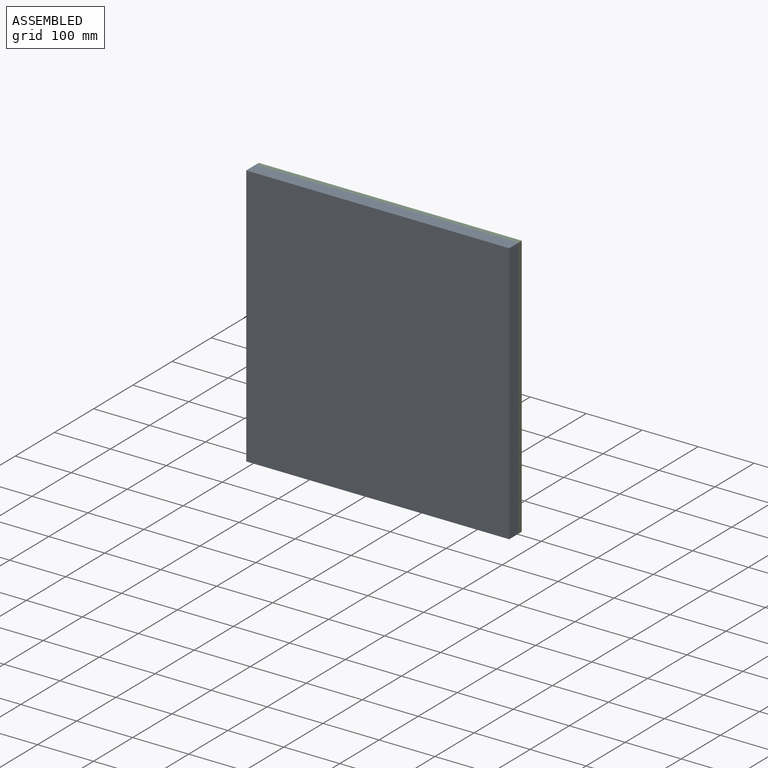
[diagram: assembled view]
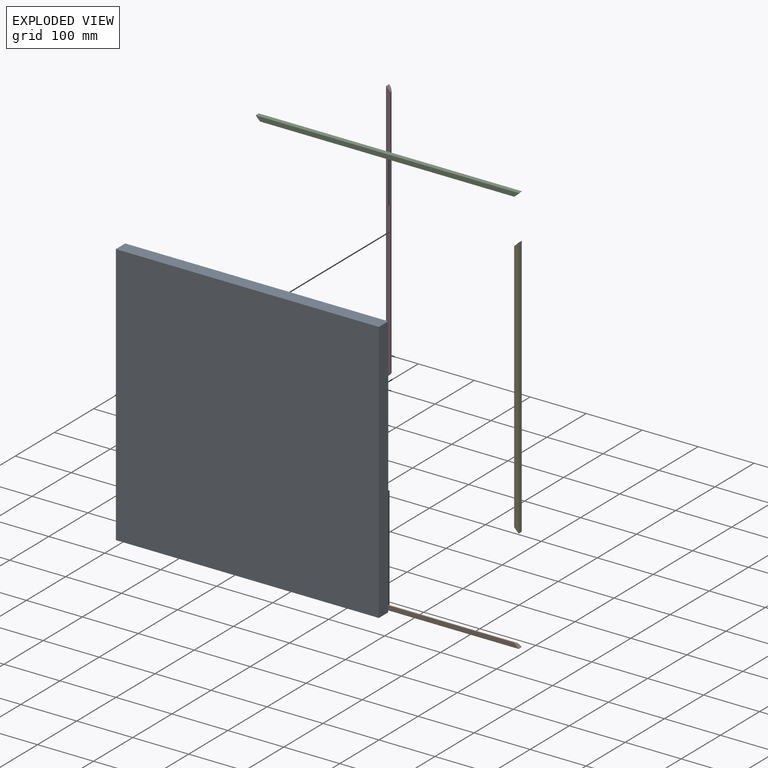
[diagram: exploded view]
GUIDED TOUR — FREECAD ASSEMBLY "F4.2"

This assembly has 5 components, labeled P0..P4 below (a component is one placed body or linked part; the same part can appear more than once), held together by 4 modeled joints. A joint is a constraint between two components; its type names the relative motion it leaves free:
  FASTENED — locks the two components together rigidly (no relative motion).
Axis/direction vectors are unit vectors and 'through' points are millimeter coordinates, both in the assembly's world frame.

MATES
  1. FASTENED [Fixed] "Fixed": P1 <-> P0, direction (0.000, 0.000, 1.000) through (-270.90, -42.20, -187.37) mm
  2. FASTENED [Fixed] "Fixed001": P0 <-> P2, direction (0.000, 0.000, 1.000) through (199.10, -42.20, 282.63) mm
  3. FASTENED [Fixed] "Fixed002": P0 <-> P3, direction (0.000, 1.000, 0.000) through (-270.90, -42.20, 282.63) mm
  4. FASTENED [Fixed] "Fixed003": P0 <-> P4, direction (0.000, 1.000, 0.000) through (199.10, -42.20, -187.37) mm

ASSEMBLY ORDER
  1. P4 — the base component [order verified]
  2. P2 [order verified]
  3. P0 [order verified]
  4. P3 [order verified]
  5. P1 [order verified]
(P3 verified with a relaxed clearance tolerance: the source model stores slight part interference there.)
Order-tag legend:
  [order verified] — this step's position reverses a verified removal order: the component was checked to insert without passing through the ones already placed.

Of the 5 components, 5 carry a construction recipe — the FreeCAD feature program (sketches with constraints, then the solid features that consume them) that regenerates the part from scratch, quoted from this document or from the linked companion document it references; the rest are supplied as boundary geometry only. The tour below walks the components in assembly order: each is shown spotlighted twice — in the assembled view, then in the exploded view, where a leader line traces a displaced component back to its assembled socket (components that stay in place when exploded have no leader line; saturated green if recipe-attached, orange if geometry-only; every other component desaturated gray) — followed by its recipe or geometry summary and the mates that hold it.
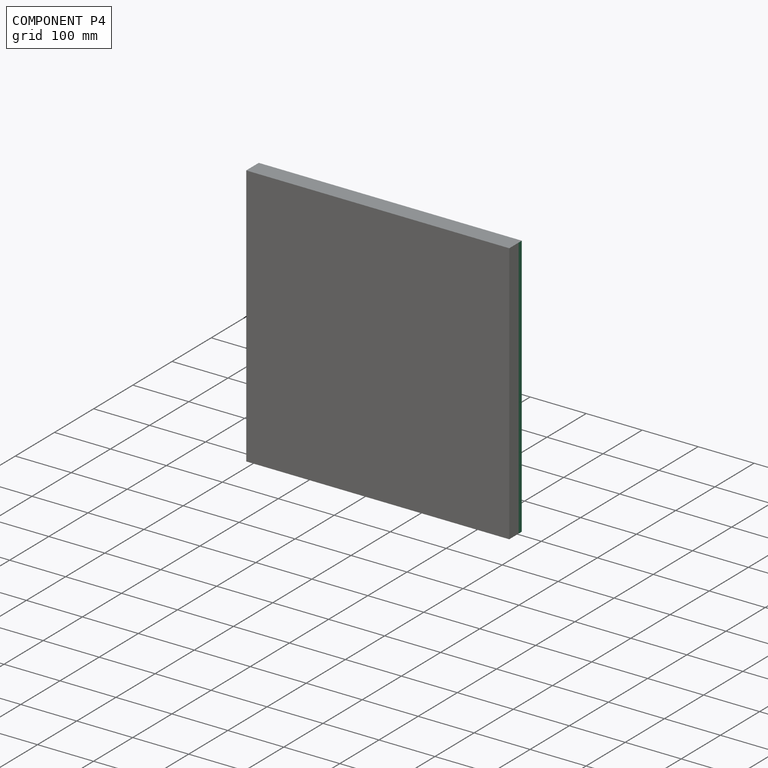
[diagram: component P4 — assembled]
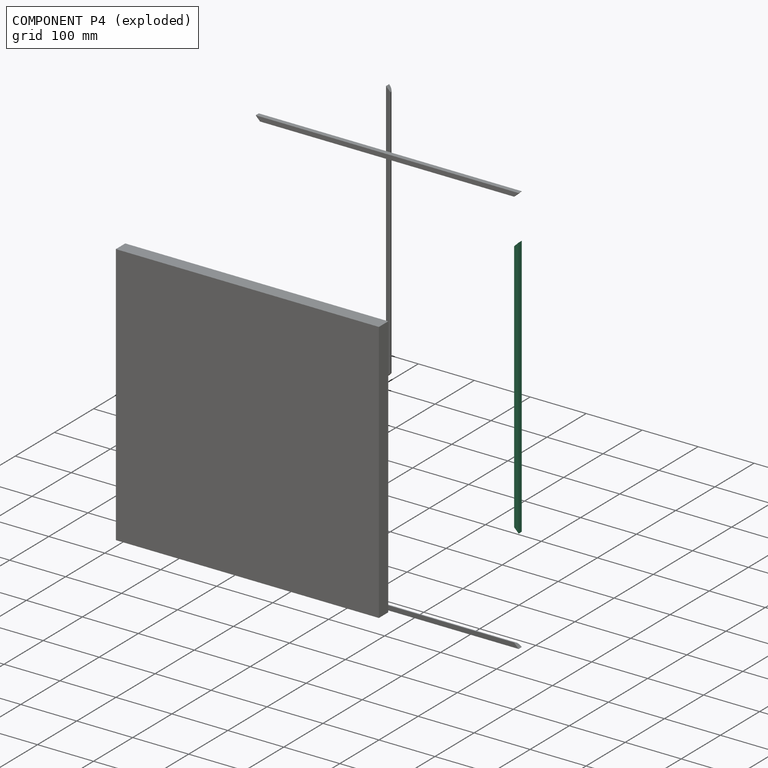
[diagram: component P4 — exploded]
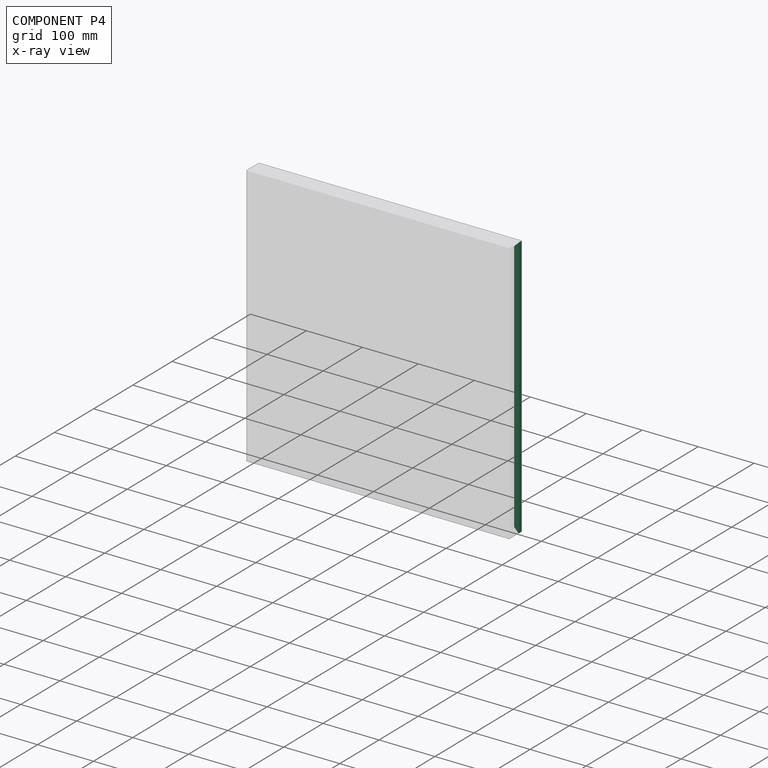
[diagram: component P4 — x-ray view]
COMPONENT P4 — same part as P1; its construction recipe is shown at P1.
Held by: FASTENED mate "Fixed003" to P0.
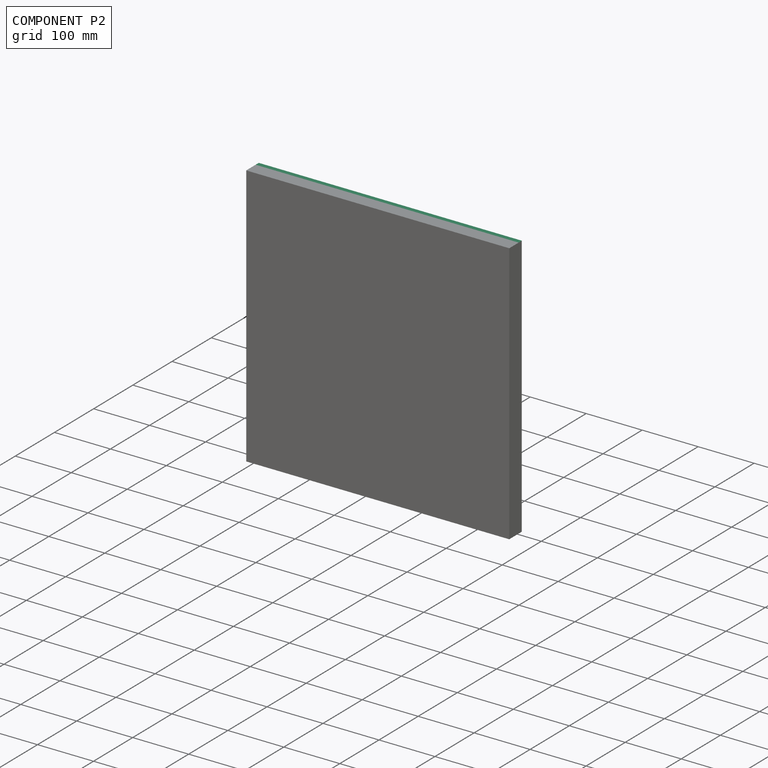
[diagram: component P2 — assembled]
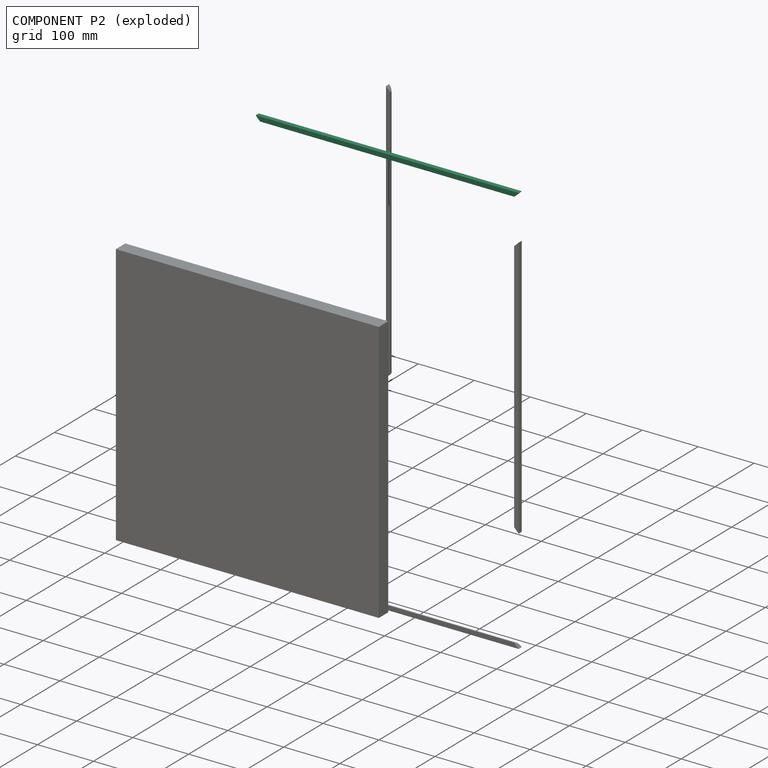
[diagram: component P2 — exploded]
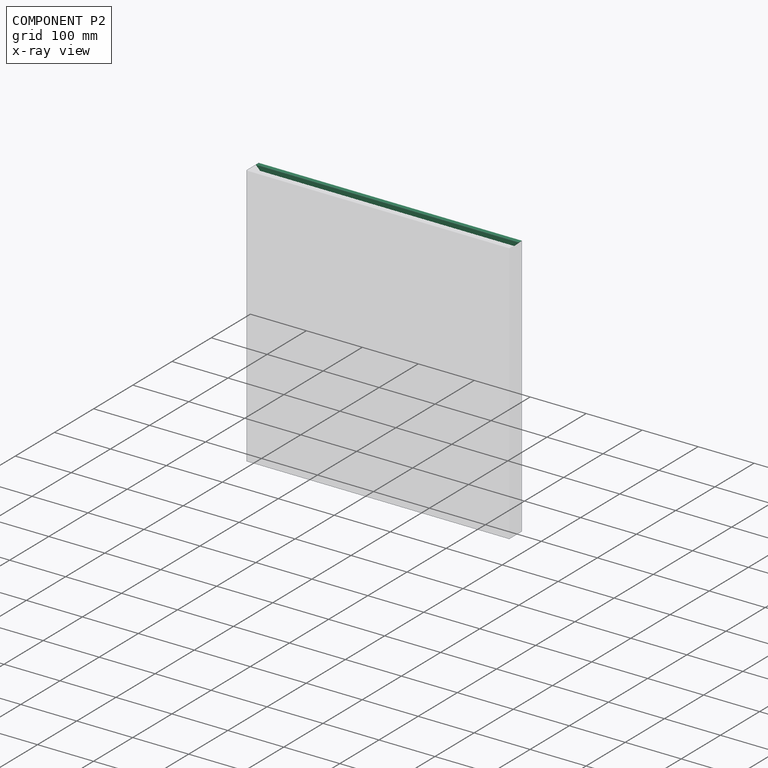
[diagram: component P2 — x-ray view]
COMPONENT P2 — same part as P1; its construction recipe is shown at P1.
Held by: FASTENED mate "Fixed001" to P0.
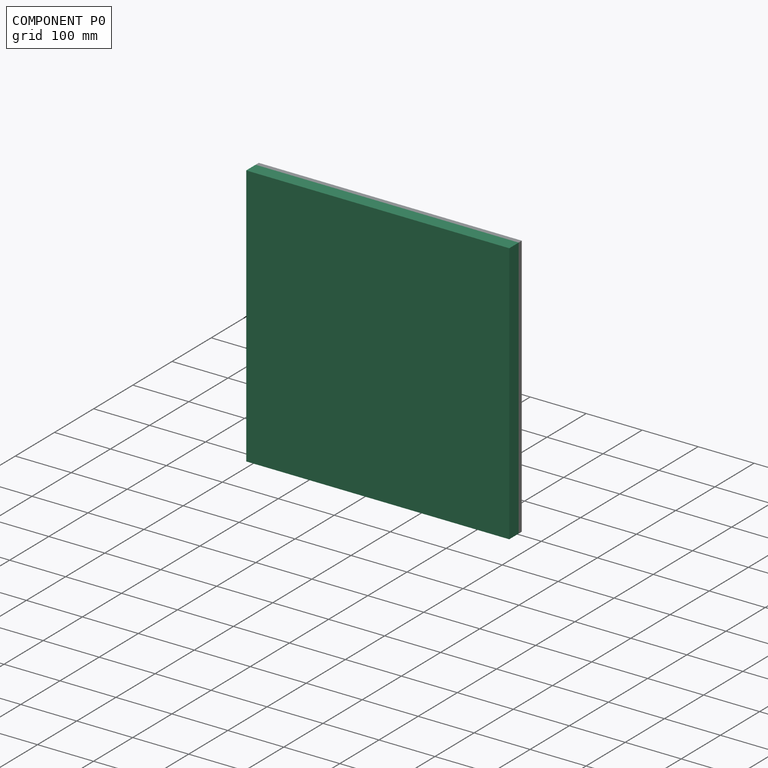
[diagram: component P0 — assembled]
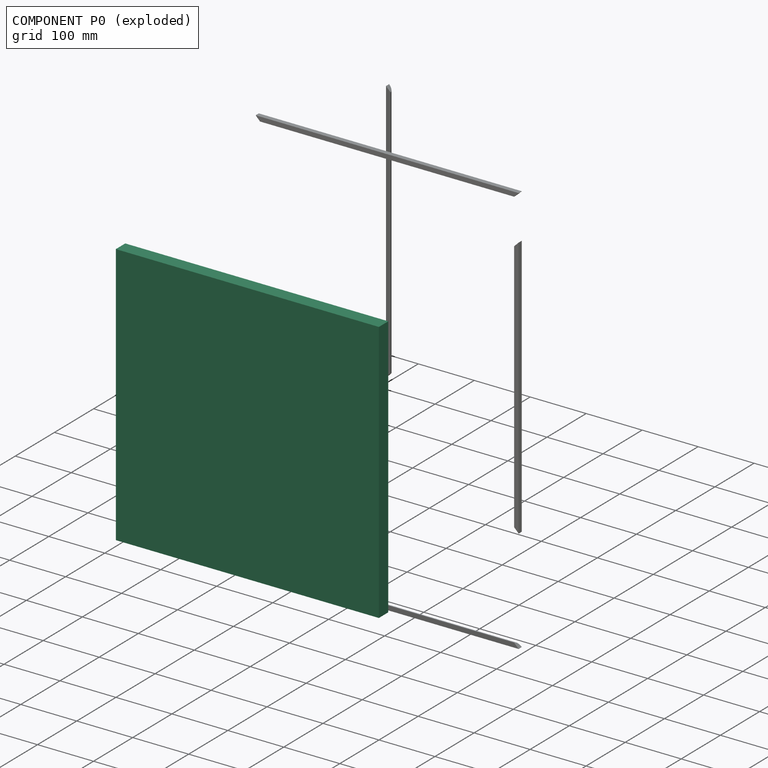
[diagram: component P0 — exploded]
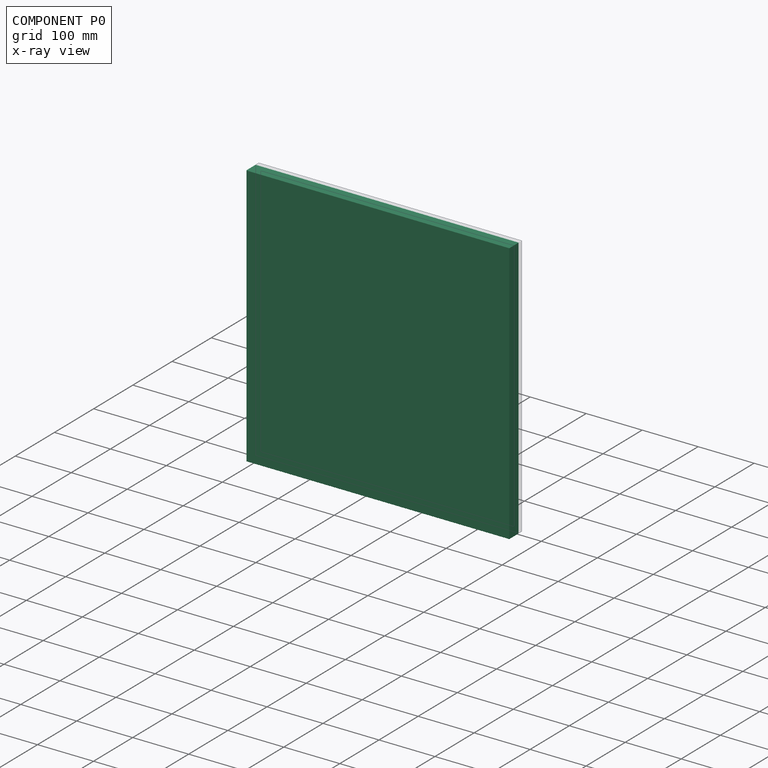
[diagram: component P0 — x-ray view]
COMPONENT P0 — recipe-attached ("Glass full001", modeled in this document).
Held by: FASTENED mate "Fixed" to P1; FASTENED mate "Fixed001" to P2; FASTENED mate "Fixed002" to P3; FASTENED mate "Fixed003" to P4.
Construction recipe (the document's own serialized feature program — sketch geometry with constraints, then the solid features built on it; lengths are millimeters unless a unit is written):

FEATURE [Sketcher::SketchObject] Sketch
  ArcFitTolerance = 0
  AttachmentSupport = -> [XZ_Plane]
  FullyConstrained = true
  MakeInternals = false
  MapMode = 5
  Placement = pos=(0,0,0) rot=(1,0,0;1.5708rad)
  expr: Constraints[10] = <<Parameters>>.GlassLength
  expr: Constraints[11] = <<Parameters>>.GlassWidth
  sketch-geometry (5):
    g0: LineSegment StartX=-235 StartY=235 StartZ=0 EndX=-235 EndY=-235 EndZ=0
    g1: LineSegment StartX=-235 StartY=-235 StartZ=0 EndX=235 EndY=-235 EndZ=0
    g2: LineSegment StartX=235 StartY=-235 StartZ=0 EndX=235 EndY=235 EndZ=0
    g3: LineSegment StartX=235 StartY=235 StartZ=0 EndX=-235 EndY=235 EndZ=0
    g4: GeomPoint [constr] X=0 Y=0 Z=0
  constraints (12):
    c: Coincident(g0,g1)
    c: Coincident(g1,g2)
    c: Coincident(g2,g3)
    c: Coincident(g3,g0)
    c: Vertical(g0)
    c: Vertical(g2)
    c: Horizontal(g1)
    c: Horizontal(g3)
    c: Symmetric(g2,g0,g4)
    c: Coincident(g4,g-1)
    c: DistanceX(g3,g3) = 470
    c: DistanceY(g2,g2) = 470
FEATURE [PartDesign::Pad] Pad
  Direction = (0,-1,2e-16)
  Length = 24
  Length2 = 10
  Midplane = true
  Placement = pos=(0,0,0) rot=(1,0,0;1.5708rad)
  Profile = -> Sketch
  ReferenceAxis = -> Sketch [N_Axis]
  Refine = true
  Suppressed = false
  Type = 0
  expr: Length = <<Parameters>>.GlassThickness
FEATURE [PartDesign::Body] Body  label="Glass full"
  AllowCompound = false
  Group = -> [Sketch,Pad]
  Length = 230
  Origin = -> Origin
  Thickness = 24
  Tip = -> Pad
  Width = 170
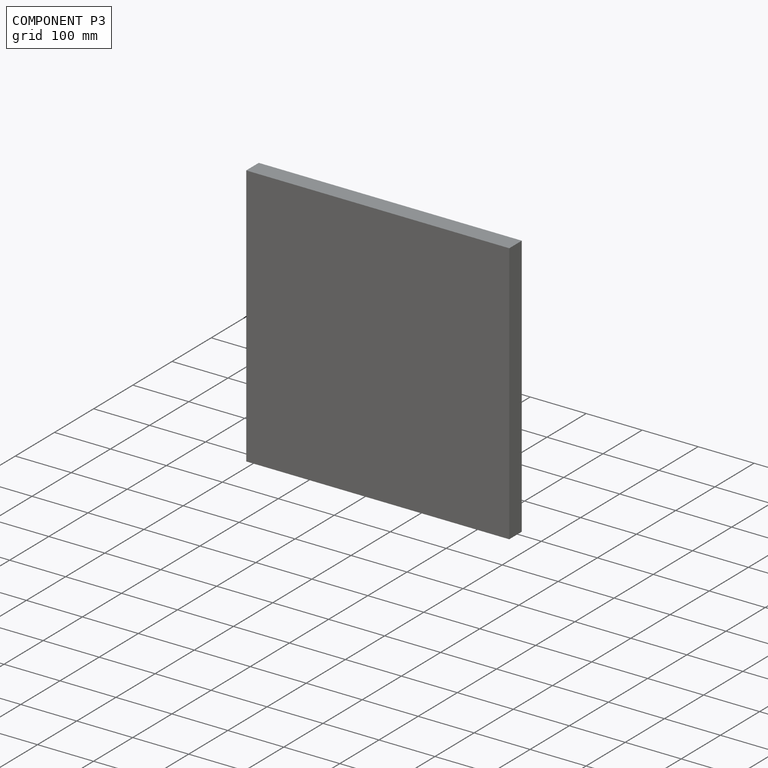
[diagram: component P3 — assembled]
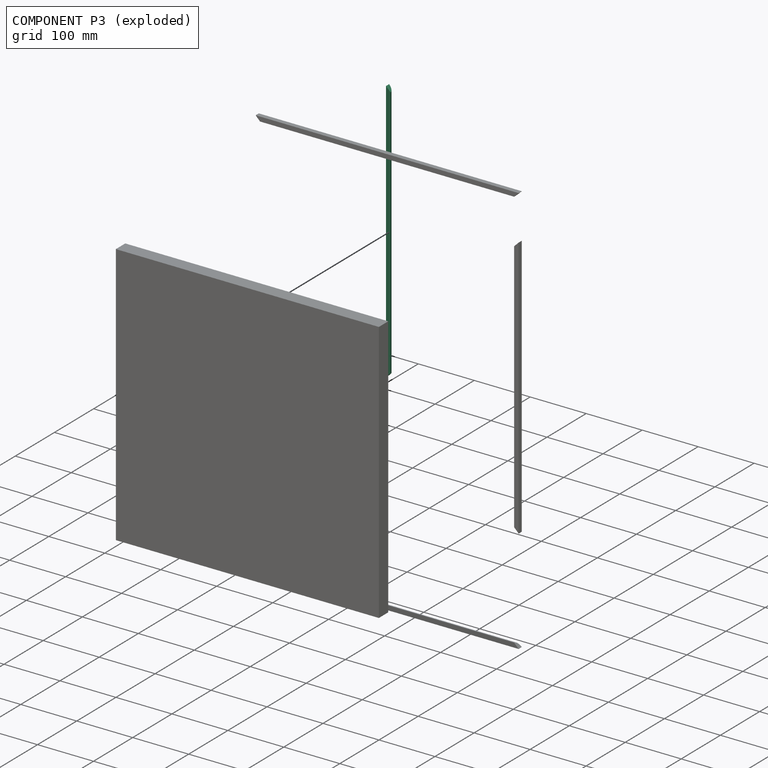
[diagram: component P3 — exploded]
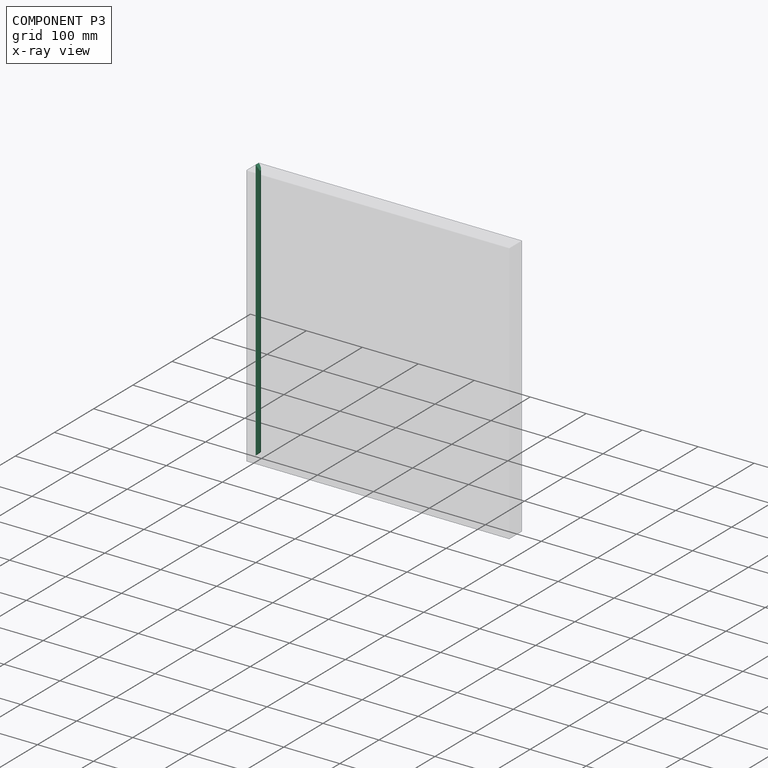
[diagram: component P3 — x-ray view]
COMPONENT P3 — same part as P1; its construction recipe is shown at P1.
Held by: FASTENED mate "Fixed002" to P0.
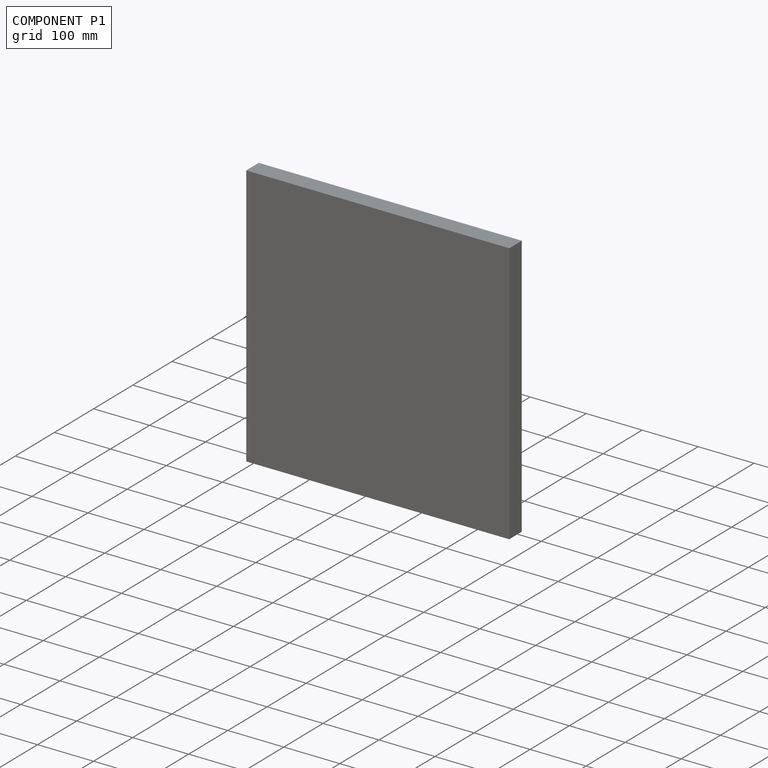
[diagram: component P1 — assembled]
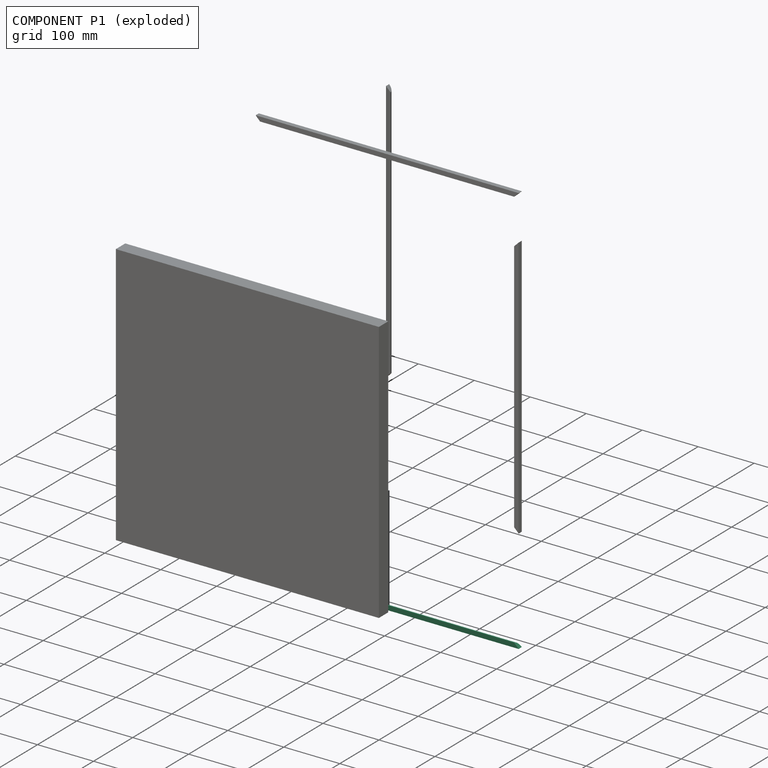
[diagram: component P1 — exploded]
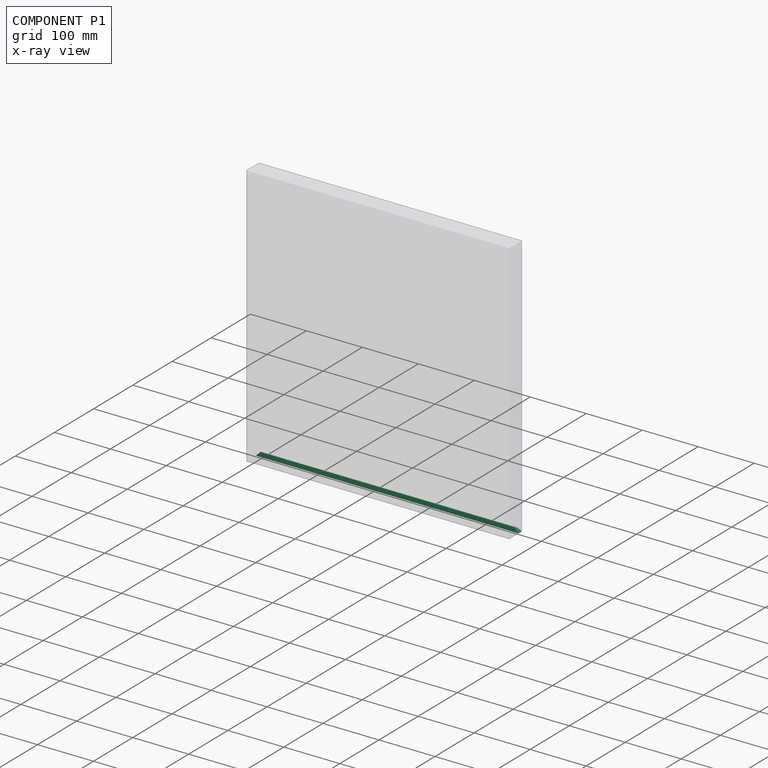
[diagram: component P1 — x-ray view]
COMPONENT P1 — recipe-attached ("Glazing bead full001", modeled in this document).
Held by: FASTENED mate "Fixed" to P0.
Construction recipe (the document's own serialized feature program — sketch geometry with constraints, then the solid features built on it; lengths are millimeters unless a unit is written):

FEATURE [Sketcher::SketchObject] Sketch001
  ArcFitTolerance = 0
  AttachmentSupport = -> [XZ_Plane001]
  FullyConstrained = true
  MakeInternals = false
  MapMode = 5
  Placement = pos=(0,0,0) rot=(1,0,0;1.5708rad)
  expr: Constraints[10] = <<Parameters>>.GlazingBeadFullLength
  expr: Constraints[11] = <<Parameters>>.GlazingBeadWidth
  sketch-geometry (5):
    g0: LineSegment StartX=-235 StartY=-4 StartZ=0 EndX=235 EndY=-4 EndZ=0
    g1: LineSegment StartX=235 StartY=-4 StartZ=0 EndX=235 EndY=4 EndZ=0
    g2: LineSegment StartX=235 StartY=4 StartZ=0 EndX=-235 EndY=4 EndZ=0
    g3: LineSegment StartX=-235 StartY=4 StartZ=0 EndX=-235 EndY=-4 EndZ=0
    g4: GeomPoint [constr] X=0 Y=0 Z=0
  constraints (12):
    c: Coincident(g0,g1)
    c: Coincident(g1,g2)
    c: Coincident(g2,g3)
    c: Coincident(g3,g0)
    c: Horizontal(g0)
    c: Horizontal(g2)
    c: Vertical(g1)
    c: Vertical(g3)
    c: Symmetric(g2,g0,g4)
    c: Coincident(g4,g-1)
    c: DistanceX(g2,g2) = 470
    c: DistanceY(g3,g3) = 8
FEATURE [PartDesign::Pad] Pad001  label="Stock"
  Direction = (0,-1,2e-16)
  Length = 8
  Length2 = 10
  Midplane = true
  Placement = pos=(0,0,0) rot=(1,0,0;1.5708rad)
  Profile = -> Sketch001
  ReferenceAxis = -> Sketch001 [N_Axis]
  Refine = true
  Suppressed = false
  Type = 0
  expr: Length = <<Parameters>>.GlazingBeadThickness
FEATURE [PartDesign::Chamfer] Chamfer
  Angle = 45
  Base = -> Pad001 [Edge5,Edge8]
  BaseFeature = -> Pad001
  ChamferType = 0
  FlipDirection = false
  Placement = pos=(0,0,0) rot=(1,0,0;1.5708rad)
  Refine = true
  Size = 7.99
  Size2 = 1
  SupportTransform = false
  Suppressed = false
  UseAllEdges = false
  expr: Size = <<Parameters>>.GlazingBeadWidth - 0.01 mm
FEATURE [PartDesign::Fillet] Fillet
  Base = -> Chamfer [Edge7]
  BaseFeature = -> Chamfer
  Placement = pos=(0,0,0) rot=(1,0,0;1.5708rad)
  Radius = 7.99
  Refine = true
  SupportTransform = false
  Suppressed = false
  UseAllEdges = false
  expr: Radius = <<Parameters>>.GlazingBeadThickness - 0.01 mm
FEATURE [PartDesign::Body] Body001  label="Glazing bead full"
  AllowCompound = false
  Group = -> [Sketch001,Pad001,Chamfer,Fillet]
  Length = 230
  Origin = -> Origin001
  Thickness = 8
  Tip = -> Fillet
  Width = 8
PROVENANCE & LICENSES
Assembly and component geometry: a FreeCAD (.FCStd) document from a public repository crawl; components, placements and joints were extracted with FreeCAD and each solid tessellated.
Construction recipes: the document's own serialized feature recipes (and, for linked parts, the recipes of companion documents from the same project).
License: lgpl-3.0.
Joints: native FreeCAD joints and A2plus constraints are mapped to standard mate types.
Verification: 5 of this assembly's 5 components carry a construction recipe (5 from this document itself); the rest are geometry-only. Every component's tessellation passed the extraction mesh gates (mesh-volume checksum against the B-rep where available, bounding-box inflation <= 2%).
Renders: orthographic iso camera (az 35 / el 25); the floor grid conveys scale (grid pitch printed in each image; no ruler). In the exploded view each component is displaced by its stored offset vector: the offsets alone carry the explosion direction (mate normal/axis signs are not orientation cues and do not encode it), and separation distances are assigned per mate-chain, not proportionally to assembly-order depth.
